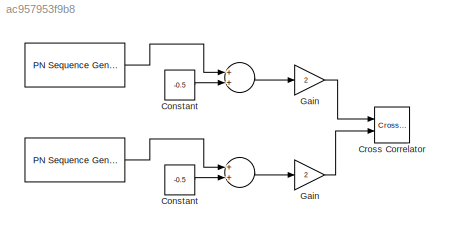
MODEL slx_ac957953f9b8
KIND model
BLOCK [Reference]    REF=commseqgen2/PN Sequence
Generator
  Ports = [0, 1]
  SourceBlock = commseqgen2/PN Sequence\nGenerator
  SourceType = PN Sequence Generator
  Ts = 1e-3
  bitPackDataSigned = off
  bitPackedOutDType = double
  bitPackedOutputs = off
  frameBased = off
  ini_sta = [1 0 0 1]
  maxOutSize = [10 1]
  maxOutSizeMode = Dialog parameter
  numPackedBits = 8
  outBitMaskSource = Dialog parameter
  outDataType = double
  outVarSiz = off
  poly = [1 0 0 1 1]
  reset = off
  sampPerFrame = 1
  shift = 0
BLOCK [Sum]     
  InputSameDT = off
  OutDataTypeStr = Inherit: Inherit via internal rule
  Ports = [2, 1]
  SaturateOnIntegerOverflow = off
BLOCK [Reference]        REF=commseqgen2/PN Sequence
Generator
  Ports = [0, 1]
  SourceBlock = commseqgen2/PN Sequence\nGenerator
  SourceType = PN Sequence Generator
  Ts = 1e-3
  bitPackDataSigned = off
  bitPackedOutDType = double
  bitPackedOutputs = off
  frameBased = off
  ini_sta = [1 0 0 1]
  maxOutSize = [10 1]
  maxOutSizeMode = Dialog parameter
  numPackedBits = 8
  outBitMaskSource = Dialog parameter
  outDataType = double
  outVarSiz = off
  poly = [1 1 0 0 1]
  reset = off
  sampPerFrame = 1
  shift = 0
BLOCK [Sum]        
  InputSameDT = off
  OutDataTypeStr = Inherit: Inherit via internal rule
  Ports = [2, 1]
  SaturateOnIntegerOverflow = off
BLOCK [Constant]  Constant 
  Value = -0.5
BLOCK [Gain]  Gain 
  Gain = 2
  OutDataTypeStr = Inherit: Inherit via internal rule
  ParamDataTypeStr = Inherit: Inherit via internal rule
  SaturateOnIntegerOverflow = off
BLOCK [Constant] Constant
  Value = -0.5
BLOCK [Reference] Cross Correlator  REF=simulink_extras/Additional
Sinks/Cross
Correlator
  HowOften = 128
  Ports = [2]
  SourceBlock = simulink_extras/Additional\nSinks/Cross\nCorrelator
  SourceType = Cross Correlator
  npts = 128
  sampleT = 1e-3
BLOCK [Gain] Gain
  Gain = 2
  OutDataTypeStr = Inherit: Inherit via internal rule
  ParamDataTypeStr = Inherit: Inherit via internal rule
  SaturateOnIntegerOverflow = off
LINE        :1 ->  Gain :1
LINE      :1 ->        :1
LINE     :1 -> Gain:1
LINE  :1 ->     :1
LINE  Constant :1 ->        :2
LINE  Gain :1 -> Cross Correlator:2
LINE Constant:1 ->     :2
LINE Gain:1 -> Cross Correlator:1
